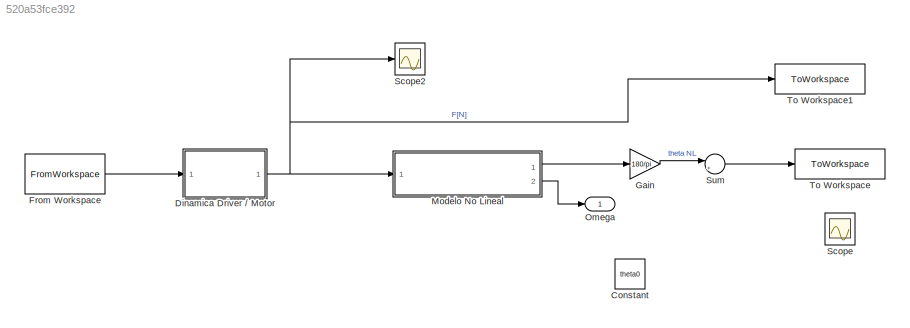
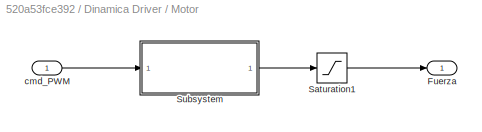
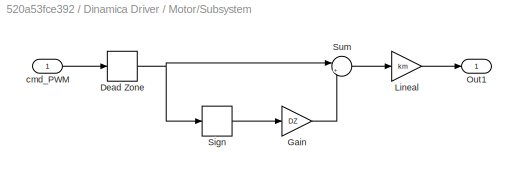
MODEL slx_520a53fce392
KIND model
CONFIG AbsTol = auto
CONFIG EnableMultiTasking = off
CONFIG FixedStep = auto
CONFIG MaxStep = 0.01
CONFIG MinStep = auto
CONFIG RelTol = 1e-3
CONFIG SampleTimeConstraint = Unconstrained
CONFIG SolverName = VariableStepAuto
CONFIG StartTime = 0.0
CONFIG StopTime = 50
BLOCK [Constant] Constant
  Value = theta0
BLOCK [SubSystem] Dinamica Driver // Motor
  Ports = [1, 1]
BLOCK [Outport] Dinamica Driver // Motor/Fuerza
BLOCK [Saturate] Dinamica Driver // Motor/Saturation1
  UpperLimit = MAX_PWM
BLOCK [SubSystem] Dinamica Driver // Motor/Subsystem
  Ports = [1, 1]
BLOCK [DeadZone] Dinamica Driver // Motor/Subsystem/Dead Zone
  LowerValue = -DZ
  UpperValue = DZ
BLOCK [Gain] Dinamica Driver // Motor/Subsystem/Gain
  Gain = DZ
BLOCK [Gain] Dinamica Driver // Motor/Subsystem/Lineal
  Gain = km
BLOCK [Outport] Dinamica Driver // Motor/Subsystem/Out1
BLOCK [Signum] Dinamica Driver // Motor/Subsystem/Sign
BLOCK [Sum] Dinamica Driver // Motor/Subsystem/Sum
  Inputs = |++
  Ports = [2, 1]
BLOCK [Inport] Dinamica Driver // Motor/Subsystem/cmd_PWM
BLOCK [Inport] Dinamica Driver // Motor/cmd_PWM
BLOCK [FromWorkspace] From Workspace
  SampleTime = 2.5e-3
  VariableName = [Time,PWM]
BLOCK [Gain] Gain
  Gain = 180/pi
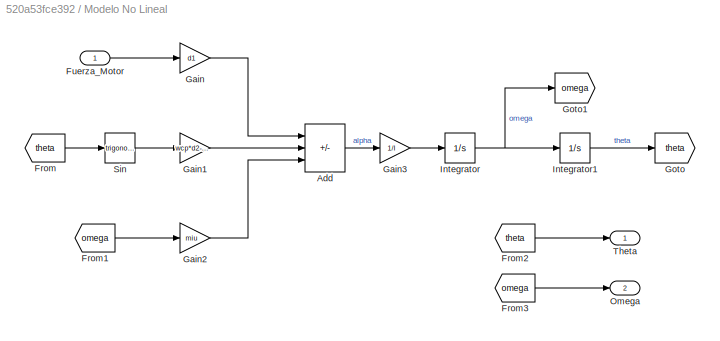
BLOCK [SubSystem] Modelo No Lineal
  Ports = [1, 2]
BLOCK [Sum] Modelo No Lineal/Add
  IconShape = rectangular
  Inputs = ++-
  Ports = [3, 1]
BLOCK [From] Modelo No Lineal/From
  GotoTag = theta
BLOCK [From] Modelo No Lineal/From1
  GotoTag = omega
BLOCK [From] Modelo No Lineal/From2
  GotoTag = theta
BLOCK [From] Modelo No Lineal/From3
  GotoTag = omega
BLOCK [Inport] Modelo No Lineal/Fuerza_Motor
BLOCK [Gain] Modelo No Lineal/Gain
  Gain = d1
  Multiplication = Matrix(K*u)
BLOCK [Gain] Modelo No Lineal/Gain1
  Gain = wcp*d2-wm*d1-wb*e
  Multiplication = Matrix(K*u)
BLOCK [Gain] Modelo No Lineal/Gain2
  Gain = miu
  Multiplication = Matrix(K*u)
BLOCK [Gain] Modelo No Lineal/Gain3
  Gain = 1/I
BLOCK [Goto] Modelo No Lineal/Goto
  GotoTag = theta
BLOCK [Goto] Modelo No Lineal/Goto1
  GotoTag = omega
BLOCK [Integrator] Modelo No Lineal/Integrator
  Ports = [1, 1]
BLOCK [Integrator] Modelo No Lineal/Integrator1
  Ports = [1, 1]
BLOCK [Outport] Modelo No Lineal/Omega
  Port = 2
BLOCK [Trigonometry] Modelo No Lineal/Sin
  Ports = [1, 1]
BLOCK [Outport] Modelo No Lineal/Theta
BLOCK [Outport] Omega
BLOCK [Scope] Scope
  Floating = off
  NumInputPorts = 1
  Ports = [1]
  ScopeSpecificationString = Simulink.scopes.TimeScopeBlockCfg('CurrentConfiguration', extmgr.ConfigurationSet(extmgr.Configuration('Core','General UI',true),extmgr.Configuration('Core','Source UI',true),extmgr.Configuration('Sources','WiredSimulink',true,'DataLoggingVariableName','ScopeData1'),extmgr.Configuration('Visuals','Time Domain',true),extmgr.Configuration('Tools','Plot Navigation',true),extmgr.Configuration('Tools',...<+40ch>
BLOCK [Scope] Scope2
  Floating = off
  NumInputPorts = 1
  Ports = [1]
  ScopeSpecificationString = Simulink.scopes.TimeScopeBlockCfg('CurrentConfiguration', extmgr.ConfigurationSet(extmgr.Configuration('Core','General UI',true),extmgr.Configuration('Core','Source UI',true),extmgr.Configuration('Sources','WiredSimulink',true),extmgr.Configuration('Visuals','Time Domain',true,'SerializedDisplays',{struct('MinYLimReal','-0.00369','MaxYLimReal','0.03319','YLabelReal','','MinYLimMag','0.00000','MaxY...<+1353ch>
BLOCK [Sum] Sum
  Inputs = |++
  Ports = [2, 1]
BLOCK [ToWorkspace] To Workspace
  FixptAsFi = on
  MaxDataPoints = inf
  Ports = [1]
  SampleTime = -1
  SaveFormat = Timeseries
  VariableName = nl_response
BLOCK [ToWorkspace] To Workspace1
  FixptAsFi = on
  MaxDataPoints = inf
  Ports = [1]
  SampleTime = -1
  SaveFormat = Timeseries
  VariableName = nl_action
LINE Dinamica Driver // Motor/Saturation1:1 -> Dinamica Driver // Motor/Fuerza:1
NET Dinamica Driver // Motor/Subsystem/Dead Zone:1 -> Dinamica Driver // Motor/Subsystem/Sign:1, Dinamica Driver // Motor/Subsystem/Sum:1
LINE Dinamica Driver // Motor/Subsystem/Gain:1 -> Dinamica Driver // Motor/Subsystem/Sum:2
LINE Dinamica Driver // Motor/Subsystem/Lineal:1 -> Dinamica Driver // Motor/Subsystem/Out1:1
LINE Dinamica Driver // Motor/Subsystem/Sign:1 -> Dinamica Driver // Motor/Subsystem/Gain:1
LINE Dinamica Driver // Motor/Subsystem/Sum:1 -> Dinamica Driver // Motor/Subsystem/Lineal:1
LINE Dinamica Driver // Motor/Subsystem/cmd_PWM:1 -> Dinamica Driver // Motor/Subsystem/Dead Zone:1
LINE Dinamica Driver // Motor/Subsystem:1 -> Dinamica Driver // Motor/Saturation1:1
LINE Dinamica Driver // Motor/cmd_PWM:1 -> Dinamica Driver // Motor/Subsystem:1
NET Dinamica Driver // Motor:1 -> Modelo No Lineal:1, Scope2:1, To Workspace1:1
LINE From Workspace:1 -> Dinamica Driver // Motor:1
LINE Gain:1 -> Sum:1
LINE Modelo No Lineal/Add:1 -> Modelo No Lineal/Gain3:1
LINE Modelo No Lineal/From1:1 -> Modelo No Lineal/Gain2:1
LINE Modelo No Lineal/From2:1 -> Modelo No Lineal/Theta:1
LINE Modelo No Lineal/From3:1 -> Modelo No Lineal/Omega:1
LINE Modelo No Lineal/From:1 -> Modelo No Lineal/Sin:1
LINE Modelo No Lineal/Fuerza_Motor:1 -> Modelo No Lineal/Gain:1
LINE Modelo No Lineal/Gain1:1 -> Modelo No Lineal/Add:2
LINE Modelo No Lineal/Gain2:1 -> Modelo No Lineal/Add:3
LINE Modelo No Lineal/Gain3:1 -> Modelo No Lineal/Integrator:1
LINE Modelo No Lineal/Gain:1 -> Modelo No Lineal/Add:1
LINE Modelo No Lineal/Integrator1:1 -> Modelo No Lineal/Goto:1
NET Modelo No Lineal/Integrator:1 -> Modelo No Lineal/Goto1:1, Modelo No Lineal/Integrator1:1
LINE Modelo No Lineal/Sin:1 -> Modelo No Lineal/Gain1:1
LINE Modelo No Lineal:1 -> Gain:1
LINE Modelo No Lineal:2 -> Omega:1
LINE Sum:1 -> To Workspace:1
note: NET lines group one-source signal fan-out (src -> all destinations, sorted); 1:1 wires keep LINE
